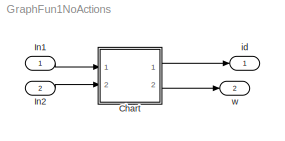
MODEL GraphFun1NoActions
KIND model
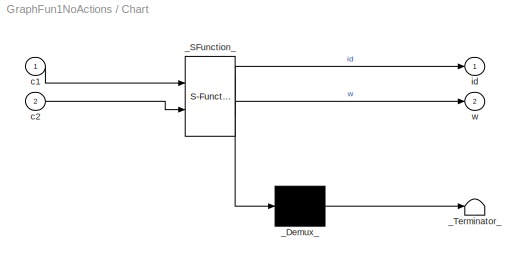
BLOCK [SubSystem] Chart
  ErrorFcn = Stateflow.Translate.translate
  PermitHierarchicalResolution = ExplicitOnly
  Ports = [2, 2]
  RequestExecContextInheritance = off
  SFBlockType = Chart
  SID = 1
  TreatAsAtomicUnit = on
  Variant = off
BLOCK [Demux] Chart/_Demux_
  Outputs = 1
  Ports = [1, 1]
  SID = 1::15
BLOCK [S-Function] Chart/_SFunction_
  EnableBusSupport = on
  FunctionName = sf_sfun
  PortCounts = [2 3]
  Ports = [2, 3]
  SFcnIsStateOwnerBlock = off
  SFunctionDeploymentMode = off
  SID = 1::14
  Tag = Stateflow S-Function GraphFun1NoActions 1
BLOCK [Terminator] Chart/_Terminator_
  SID = 1::16
BLOCK [Inport] Chart/c1
  IconDisplay = Port number
  SID = 1::18
BLOCK [Inport] Chart/c2
  IconDisplay = Port number
  Port = 2
  SID = 1::19
BLOCK [Outport] Chart/id
  IconDisplay = Port number
  SID = 1::20
BLOCK [Outport] Chart/w
  IconDisplay = Port number
  Port = 2
  SID = 1::21
BLOCK [Inport] In1
  IconDisplay = Port number
  OutDataTypeStr = boolean
  SID = 3
BLOCK [Inport] In2
  IconDisplay = Port number
  OutDataTypeStr = boolean
  Port = 2
  SID = 4
BLOCK [Outport] id
  IconDisplay = Port number
  SID = 2
BLOCK [Outport] w
  IconDisplay = Port number
  Port = 2
  SID = 5
LINE Chart/_Demux_:1 -> Chart/_Terminator_:1
LINE Chart/_SFunction_:1 -> Chart/_Demux_:1
LINE Chart/_SFunction_:2 -> Chart/id:1
LINE Chart/_SFunction_:3 -> Chart/w:1
LINE Chart/c1:1 -> Chart/_SFunction_:1
LINE Chart/c2:1 -> Chart/_SFunction_:2
LINE Chart:1 -> id:1
LINE Chart:2 -> w:1
LINE In1:1 -> Chart:1
LINE In2:1 -> Chart:2
CHART Chart states=3 transitions=5
  STATE_LABEL 'A/\\nen:[id, w]=f(1.0,int32(1));\\n'
  STATE_LABEL 'B/\\nen:[id, w]=f(2,int32(2));'
  STATE_LABEL '[z1, z2]=f(x,y)'
